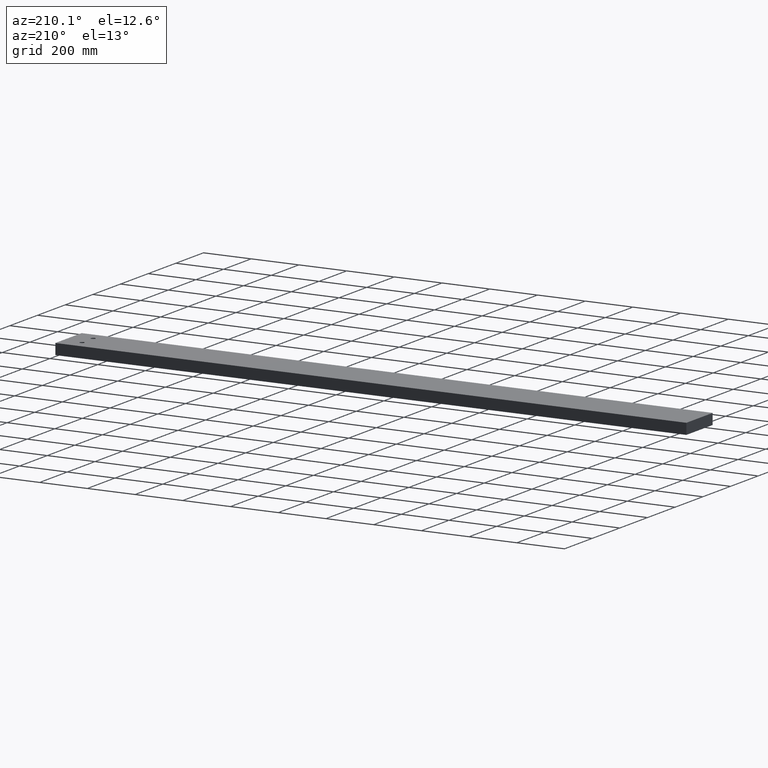
[diagram: clean part render]
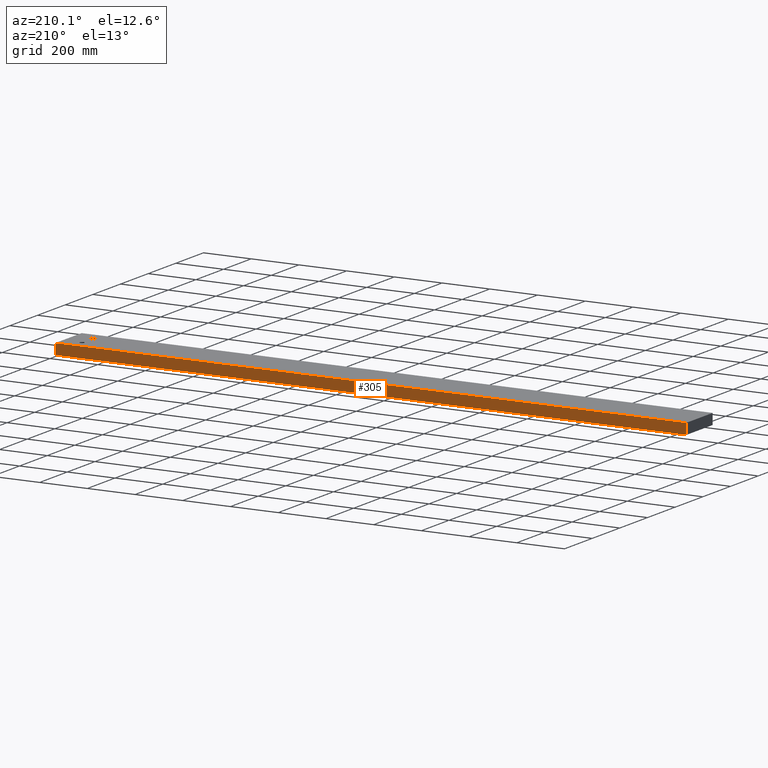
[diagram: same view with one face highlighted and labeled with its STEP entity id]
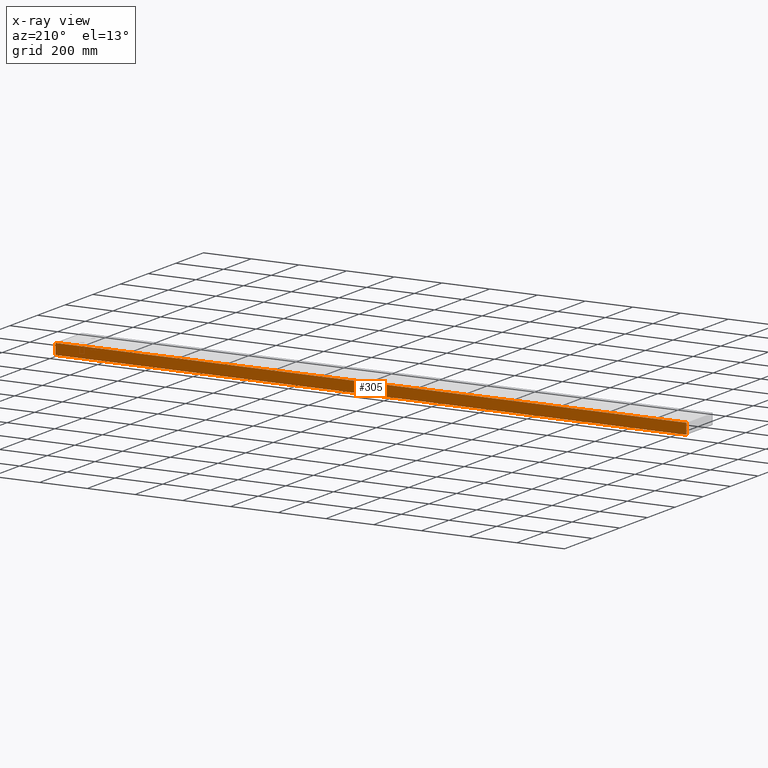
[diagram: x-ray of the same camera — body ghosted, the highlighted face saturated]
A machine part, auxiliary view. The second image highlights one B-rep face of the part: STEP entity #305.
The next image is the same camera in x-ray: the body ghosted, the highlighted face saturated — about 0% of this face is hidden behind the body in this view.
In plain terms, the highlighted planar face has unit normal (0, -1, 0).
Its self-contained STEP definition (entity closure, byte-faithful):
#1 = VERTEX_POINT ( 'NONE', #198 ) ;
#4 = EDGE_CURVE ( 'NONE', #11, #102, #144, .T. ) ;
#9 = ORIENTED_EDGE ( 'NONE', *, *, #292, .T. ) ;
#11 = VERTEX_POINT ( 'NONE', #319 ) ;
#12 = LINE ( 'NONE', #162, #231 ) ;
#27 = DIRECTION ( 'NONE',  ( 1.000000000000000000, 3.061616997868382648E-16, -0.000000000000000000 ) ) ;
#48 = EDGE_CURVE ( 'NONE', #1, #77, #257, .T. ) ;
#67 = DIRECTION ( 'NONE',  ( -0.000000000000000000, -4.009138700035287069E-15, -1.000000000000000000 ) ) ;
#68 = AXIS2_PLACEMENT_3D ( 'NONE', #76, #194, #107 ) ;
#76 = CARTESIAN_POINT ( 'NONE',  ( -1322.500000000000000, 94.99999999999960210, -22.50000000000038014 ) ) ;
#77 = VERTEX_POINT ( 'NONE', #380 ) ;
#102 = VERTEX_POINT ( 'NONE', #263 ) ;
#105 = ORIENTED_EDGE ( 'NONE', *, *, #4, .F. ) ;
#107 = DIRECTION ( 'NONE',  ( 0.000000000000000000, -4.009138700035287069E-15, -1.000000000000000000 ) ) ;
#111 = VECTOR ( 'NONE', #226, 1000.000000000000000 ) ;
#114 = CARTESIAN_POINT ( 'NONE',  ( -1322.500000000000000, 94.99999999999960210, -22.50000000000038014 ) ) ;
#137 = EDGE_LOOP ( 'NONE', ( #9, #105, #180, #378 ) ) ;
#144 = LINE ( 'NONE', #114, #111 ) ;
#162 = CARTESIAN_POINT ( 'NONE',  ( 1322.500000000000000, 95.00000000000039790, -22.50000000000038014 ) ) ;
#164 = EDGE_CURVE ( 'NONE', #1, #11, #304, .T. ) ;
#173 = CARTESIAN_POINT ( 'NONE',  ( -1322.500000000000000, 94.99999999999977263, 22.49999999999963052 ) ) ;
#180 = ORIENTED_EDGE ( 'NONE', *, *, #164, .F. ) ;
#194 = DIRECTION ( 'NONE',  ( 3.061616997868382648E-16, -1.000000000000000000, 4.009138700035287069E-15 ) ) ;
#198 = CARTESIAN_POINT ( 'NONE',  ( -1322.500000000000000, 94.99999999999977263, 22.49999999999963052 ) ) ;
#226 = DIRECTION ( 'NONE',  ( 1.000000000000000000, 3.061616997868382648E-16, -0.000000000000000000 ) ) ;
#231 = VECTOR ( 'NONE', #308, 1000.000000000000000 ) ;
#247 = FACE_OUTER_BOUND ( 'NONE', #137, .T. ) ;
#257 = LINE ( 'NONE', #173, #325 ) ;
#263 = CARTESIAN_POINT ( 'NONE',  ( 1322.500000000000000, 95.00000000000039790, -22.50000000000038014 ) ) ;
#292 = EDGE_CURVE ( 'NONE', #77, #102, #12, .T. ) ;
#294 = VECTOR ( 'NONE', #67, 1000.000000000000000 ) ;
#304 = LINE ( 'NONE', #328, #294 ) ;
#305 = ADVANCED_FACE ( 'NONE', ( #247 ), #309, .F. ) ;
#308 = DIRECTION ( 'NONE',  ( -0.000000000000000000, -4.009138700035287069E-15, -1.000000000000000000 ) ) ;
#309 = PLANE ( 'NONE',  #68 ) ;
#319 = CARTESIAN_POINT ( 'NONE',  ( -1322.500000000000000, 94.99999999999960210, -22.50000000000038014 ) ) ;
#325 = VECTOR ( 'NONE', #27, 1000.000000000000000 ) ;
#328 = CARTESIAN_POINT ( 'NONE',  ( -1322.500000000000000, 94.99999999999960210, -22.50000000000038014 ) ) ;
#378 = ORIENTED_EDGE ( 'NONE', *, *, #48, .T. ) ;
#380 = CARTESIAN_POINT ( 'NONE',  ( 1322.500000000000000, 95.00000000000058265, 22.49999999999963052 ) ) ;